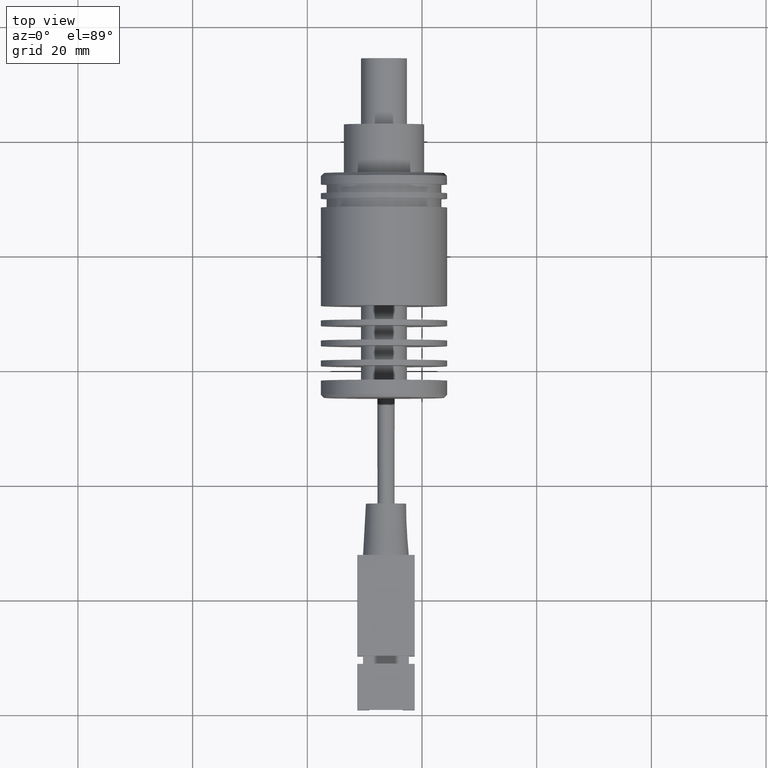
[diagram: clean part render]
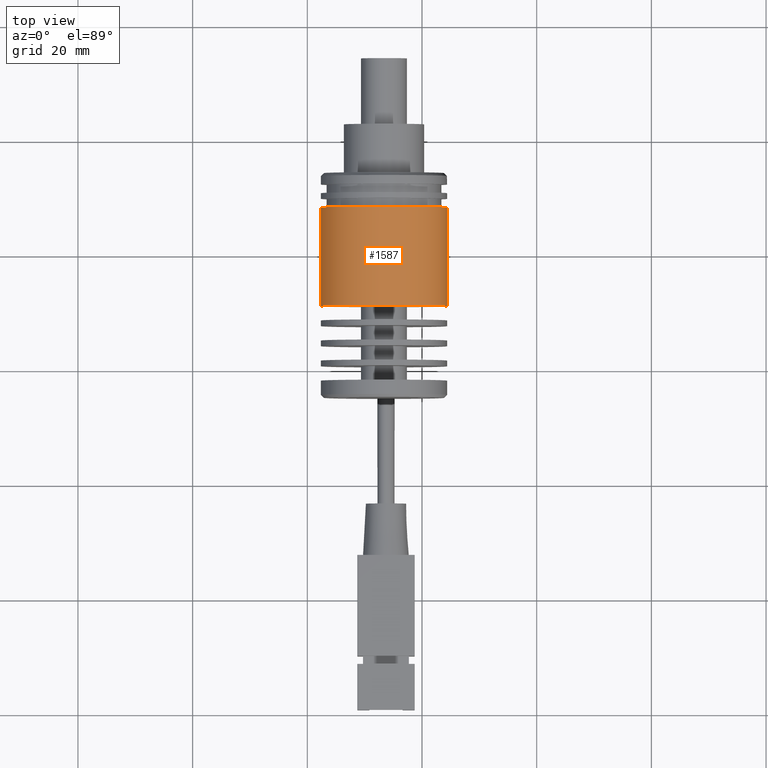
[diagram: same view with one face highlighted and labeled with its STEP entity id]
A machine part, top view. The second image highlights one B-rep face of the part: STEP entity #1587.
In plain terms, the highlighted cylindrical surface (bore or boss wall) has radius 11 mm, axis along (-0, 1, -0).
Its self-contained STEP definition (entity closure, byte-faithful):
#30 = EDGE_CURVE ( 'NONE', #543, #543, #2630, .T. ) ;
#55 = FACE_OUTER_BOUND ( 'NONE', #1782, .T. ) ;
#58 = CARTESIAN_POINT ( 'NONE',  ( -26.62679400892660908, 7.827102312992425759, 59.20000000000436557 ) ) ;
#129 = VERTEX_POINT ( 'NONE', #1709 ) ;
#283 = DIRECTION ( 'NONE',  ( -1.234232310948269202E-16, 1.000000000000000000, -0.000000000000000000 ) ) ;
#373 = CARTESIAN_POINT ( 'NONE',  ( -37.62679400892296400, 7.827102312992423983, 59.20000000000436557 ) ) ;
#510 = AXIS2_PLACEMENT_3D ( 'NONE', #58, #1347, #1133 ) ;
#543 = VERTEX_POINT ( 'NONE', #373 ) ;
#662 = CIRCLE ( 'NONE', #1775, 10.99999999999635669 ) ;
#718 = DIRECTION ( 'NONE',  ( -1.234232310948269202E-16, 1.000000000000000000, -0.000000000000000000 ) ) ;
#731 = DIRECTION ( 'NONE',  ( -1.000000000000000000, -1.577021341797619688E-16, 0.000000000000000000 ) ) ;
#906 = AXIS2_PLACEMENT_3D ( 'NONE', #2698, #718, #981 ) ;
#937 = CYLINDRICAL_SURFACE ( 'NONE', #906, 10.99999999999636024 ) ;
#953 = CARTESIAN_POINT ( 'NONE',  ( -26.62679400892660908, -9.372897687008295620, 59.20000000000436557 ) ) ;
#981 = DIRECTION ( 'NONE',  ( -1.000000000000000000, 0.000000000000000000, 0.000000000000000000 ) ) ;
#1045 = EDGE_LOOP ( 'NONE', ( #1147 ) ) ;
#1133 = DIRECTION ( 'NONE',  ( -1.000000000000000000, -1.577021341797619688E-16, 0.000000000000000000 ) ) ;
#1147 = ORIENTED_EDGE ( 'NONE', *, *, #30, .T. ) ;
#1347 = DIRECTION ( 'NONE',  ( 1.234232310948269202E-16, -1.000000000000000000, 0.000000000000000000 ) ) ;
#1466 = EDGE_CURVE ( 'NONE', #129, #129, #662, .T. ) ;
#1587 = ADVANCED_FACE ( 'NONE', ( #2242, #55 ), #937, .T. ) ;
#1709 = CARTESIAN_POINT ( 'NONE',  ( -37.62679400892296400, -9.372897687008297396, 59.20000000000436557 ) ) ;
#1775 = AXIS2_PLACEMENT_3D ( 'NONE', #953, #283, #731 ) ;
#1782 = EDGE_LOOP ( 'NONE', ( #1793 ) ) ;
#1793 = ORIENTED_EDGE ( 'NONE', *, *, #1466, .T. ) ;
#2242 = FACE_OUTER_BOUND ( 'NONE', #1045, .T. ) ;
#2630 = CIRCLE ( 'NONE', #510, 10.99999999999635669 ) ;
#2698 = CARTESIAN_POINT ( 'NONE',  ( -26.62679400892661263, 33.82710231299243020, 59.20000000000436557 ) ) ;